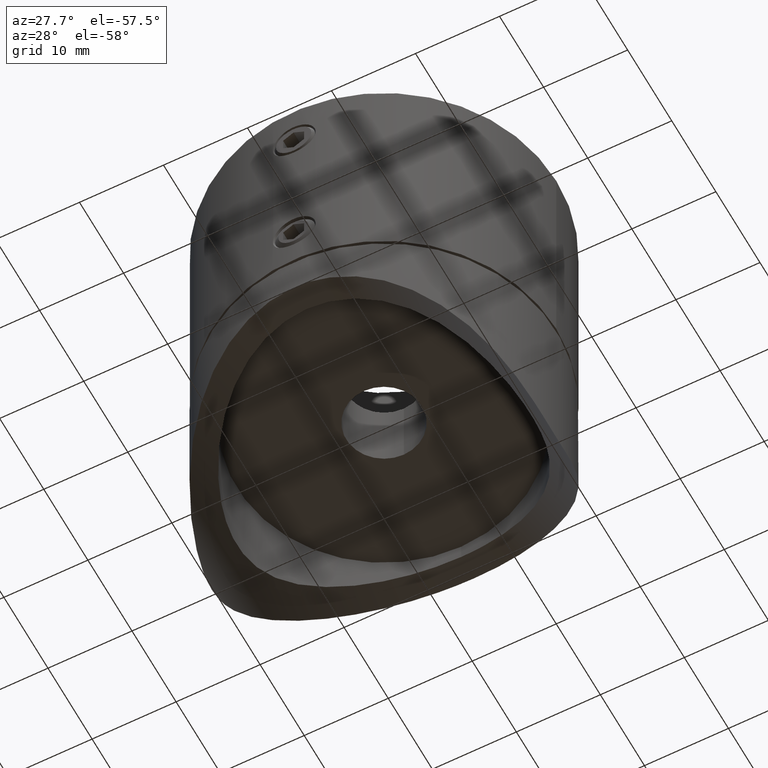
[diagram: clean part render]
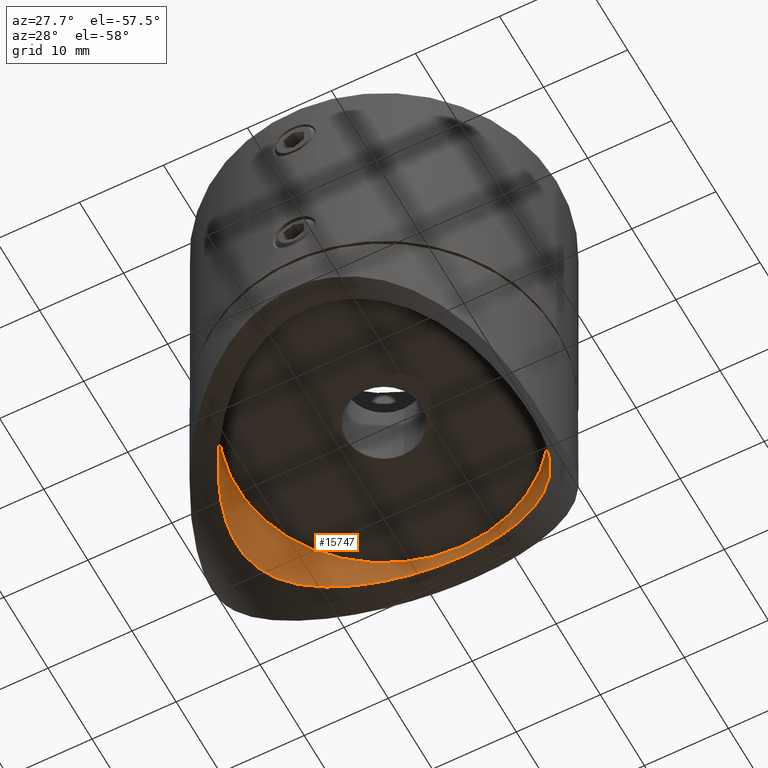
[diagram: same view with one face highlighted and labeled with its STEP entity id]
A machine part, auxiliary view. The second image highlights one B-rep face of the part: STEP entity #15747.
In plain terms, the highlighted cylindrical surface (bore or boss wall) has radius 17.5 mm, axis along (0, 0, -1).
Its self-contained STEP definition (entity closure, byte-faithful):
#34 = CARTESIAN_POINT ( 'NONE',  ( -17.24386337891472465, 3.040406141282110397, -8.865839844872155595 ) ) ;
#88 = CARTESIAN_POINT ( 'NONE',  ( -9.083739000497836003, -14.96880593915698832, -2.036885764455773185 ) ) ;
#161 = DIRECTION ( 'NONE',  ( -0.000000000000000000, 1.156482317317871478E-16, -1.000000000000000000 ) ) ;
#295 = CARTESIAN_POINT ( 'NONE',  ( 7.497553294319823536, -15.82324873608317439, -1.362004697499437977 ) ) ;
#352 = CARTESIAN_POINT ( 'NONE',  ( 13.21346104451343173, -11.48681872448379337, -4.615597683663826167 ) ) ;
#403 = CARTESIAN_POINT ( 'NONE',  ( 17.01303445160383987, 4.141714093986752943, -8.549379967654234136 ) ) ;
#876 = CARTESIAN_POINT ( 'NONE',  ( -5.067655612918739116, 16.75283616284645305, -0.6125111074320683802 ) ) ;
#998 = CARTESIAN_POINT ( 'NONE',  ( -3.906236867193531026, 17.06110921966444849, -0.3608496445155510712 ) ) ;
#1055 = CARTESIAN_POINT ( 'NONE',  ( -8.043638371016083255, 15.55236825713667059, -1.577650751387617012 ) ) ;
#1178 = CARTESIAN_POINT ( 'NONE',  ( -14.23847569933384527, 10.18855310605379927, -5.487715213909245549 ) ) ;
#1235 = CARTESIAN_POINT ( 'NONE',  ( -16.30806594274449850, 6.372029755616434699, -7.650148169647616569 ) ) ;
#1338 = CARTESIAN_POINT ( 'NONE',  ( -13.91609126854267053, 10.62481324897706259, -5.200591525558388994 ) ) ;
#1403 = CARTESIAN_POINT ( 'NONE',  ( -17.33827104258254082, 2.451050158928962386, -9.000120589566094509 ) ) ;
#1452 = CARTESIAN_POINT ( 'NONE',  ( 14.22241351837834777, -10.21106302151933676, -5.473122119973910849 ) ) ;
#1626 = CARTESIAN_POINT ( 'NONE',  ( 11.71504083009419261, -13.04522999051553001, -3.505981036777544801 ) ) ;
#2447 = CARTESIAN_POINT ( 'NONE',  ( -7.568379588315958806, -15.78940386503816029, -1.388997083494236451 ) ) ;
#2498 = CARTESIAN_POINT ( 'NONE',  ( -17.46699287505471787, 1.235900291459521405, -9.185140022539869165 ) ) ;
#2550 = CARTESIAN_POINT ( 'NONE',  ( -15.65583057623333119, 7.897346450912092308, -6.889829957757155121 ) ) ;
#2602 = CARTESIAN_POINT ( 'NONE',  ( -12.87097464404788560, 11.86932399460175169, -4.347759016917471797 ) ) ;
#2658 = CARTESIAN_POINT ( 'NONE',  ( 0.000000000000000000, 0.000000000000000000, 0.000000000000000000 ) ) ;
#2914 = CARTESIAN_POINT ( 'NONE',  ( -1.277528164808326538, -17.49584459206828413, -0.003430165658339822971 ) ) ;
#2942 = CYLINDRICAL_SURFACE ( 'NONE', #7521, 17.50000000000000000 ) ;
#3077 = CARTESIAN_POINT ( 'NONE',  ( 17.37796659204369121, 2.085241071745541852, -9.057133369806717127 ) ) ;
#3129 = CARTESIAN_POINT ( 'NONE',  ( 17.33462974748771401, -2.475738546407064700, -8.994938054514005188 ) ) ;
#3187 = CARTESIAN_POINT ( 'NONE',  ( 16.49501262945719660, -5.872939585915643690, -7.879567121977553157 ) ) ;
#3337 = FACE_OUTER_BOUND ( 'NONE', #13992, .T. ) ;
#3403 = CARTESIAN_POINT ( 'NONE',  ( 8.086705730690027849, 15.52996890337844427, -1.595404497979376224 ) ) ;
#3407 = ORIENTED_EDGE ( 'NONE', *, *, #15034, .F. ) ;
#3587 = CARTESIAN_POINT ( 'NONE',  ( -9.524517569277668017, 14.69170826759712156, -2.252846591963477696 ) ) ;
#3700 = CARTESIAN_POINT ( 'NONE',  ( -6.507517457610140887, -16.25539481356940286, -1.015639155783585768 ) ) ;
#3813 = CARTESIAN_POINT ( 'NONE',  ( -16.52182079844146756, -5.797052159638316660, -7.912908347491365291 ) ) ;
#3921 = CARTESIAN_POINT ( 'NONE',  ( -17.50067843918114363, -0.5873231742949008849, -9.234789777794508936 ) ) ;
#4142 = CARTESIAN_POINT ( 'NONE',  ( -4.252397677670929355, -16.97813969774495391, -0.4287410033487076277 ) ) ;
#4245 = CARTESIAN_POINT ( 'NONE',  ( 16.84316366280751254, -4.783795444377584083, -8.322608512135147407 ) ) ;
#4359 = CARTESIAN_POINT ( 'NONE',  ( 15.15509232401279860, 8.816608068498799966, -6.352814690414372301 ) ) ;
#4418 = CARTESIAN_POINT ( 'NONE',  ( 17.47068367874127759, 1.180264632735980923, -9.190547752342899557 ) ) ;
#4729 = CARTESIAN_POINT ( 'NONE',  ( -4.198211667982922890, 16.99162043731080018, -0.4177193951831520979 ) ) ;
#5069 = CARTESIAN_POINT ( 'NONE',  ( -17.46985179758621598, -1.193845812649097837, -9.189324701120186845 ) ) ;
#5117 = CARTESIAN_POINT ( 'NONE',  ( -16.32442710002123931, -6.330230443123496364, -7.669859431588230692 ) ) ;
#5136 = VERTEX_POINT ( 'NONE', #9335 ) ;
#5227 = CARTESIAN_POINT ( 'NONE',  ( -13.94038394261453639, -10.59293742111977643, -5.221764300403955339 ) ) ;
#5286 = CARTESIAN_POINT ( 'NONE',  ( 0.2465697910313439101, -17.50091767167528189, 0.0007575105885289126458 ) ) ;
#5508 = CARTESIAN_POINT ( 'NONE',  ( 9.010682868421870495, -15.01277645573478203, -2.002495604114043815 ) ) ;
#5541 = EDGE_CURVE ( 'NONE', #8162, #8162, #9707, .T. ) ;
#5618 = CARTESIAN_POINT ( 'NONE',  ( 16.52469693459130085, 5.788760017350249143, -7.916501575781205169 ) ) ;
#5669 = CARTESIAN_POINT ( 'NONE',  ( 14.25871095076460016, 10.16016792766058963, -5.506112789873336411 ) ) ;
#5834 = CARTESIAN_POINT ( 'NONE',  ( 3.058516256898806240, 17.24129890699676793, -0.2131673490597825460 ) ) ;
#5948 = CARTESIAN_POINT ( 'NONE',  ( 2.450482594706057338, 17.33840392213179626, -0.1332271744567321836 ) ) ;
#6237 = CARTESIAN_POINT ( 'NONE',  ( -6.466438711126498262, 16.27179417740867606, -1.002424180671938503 ) ) ;
#6401 = CARTESIAN_POINT ( 'NONE',  ( -13.25709795518398515, -11.43651964025425904, -4.650447911015619162 ) ) ;
#6408 = DIRECTION ( 'NONE',  ( -0.000000000000000000, 1.156482317317871478E-16, -1.000000000000000000 ) ) ;
#6456 = CARTESIAN_POINT ( 'NONE',  ( -16.50506731380759717, 5.844912491493738926, -7.892026179087148208 ) ) ;
#6506 = CARTESIAN_POINT ( 'NONE',  ( -17.19095212691278007, -3.287435342662163418, -8.793489093231034559 ) ) ;
#6563 = CARTESIAN_POINT ( 'NONE',  ( -3.957094607793416596, -17.04942438003020300, -0.3704163064312105402 ) ) ;
#6720 = CARTESIAN_POINT ( 'NONE',  ( 5.875721920608387272, -16.49492799653786079, -0.8220339605937884153 ) ) ;
#6779 = CARTESIAN_POINT ( 'NONE',  ( 9.494865487268153714, -14.71098971236246200, -2.237894517711387365 ) ) ;
#6940 = CARTESIAN_POINT ( 'NONE',  ( 11.75184374789024666, 13.01284439820549999, -3.530066077978521122 ) ) ;
#7004 = CARTESIAN_POINT ( 'NONE',  ( 12.89562394974593573, 11.84273493110535291, -4.366521986897741847 ) ) ;
#7119 = CARTESIAN_POINT ( 'NONE',  ( 7.564560770108174736, 15.79141555487498572, -1.387400769369391940 ) ) ;
#7378 = CARTESIAN_POINT ( 'NONE',  ( -4.778612427083569258, 16.83760700237858998, -0.5434506362205558938 ) ) ;
#7521 = AXIS2_PLACEMENT_3D ( 'NONE', #2658, #6408, #8970 ) ;
#7722 = CARTESIAN_POINT ( 'NONE',  ( -11.76022229711522016, -13.00464765559365254, -3.535992552796882737 ) ) ;
#7729 = CARTESIAN_POINT ( 'NONE',  ( -1.192622389734054877E-15, 17.50000000000000000, -5.897859040141040032E-18 ) ) ;
#7826 = CARTESIAN_POINT ( 'NONE',  ( -9.562018155268978248, -14.66722832022718848, -2.271821499043444881 ) ) ;
#7880 = CARTESIAN_POINT ( 'NONE',  ( 13.89762547964845396, -10.64887614781257774, -5.184571220463790375 ) ) ;
#8046 = CARTESIAN_POINT ( 'NONE',  ( 6.430025487511463744, -16.28629111231520454, -0.9907413482544245031 ) ) ;
#8099 = CARTESIAN_POINT ( 'NONE',  ( 4.158952617992463630, -17.00922726916944328, -0.4033924051184962778 ) ) ;
#8151 = CARTESIAN_POINT ( 'NONE',  ( 17.19306620750767678, 3.276470449463080303, -8.796417594185959032 ) ) ;
#8162 = VERTEX_POINT ( 'NONE', #9130 ) ;
#8208 = CARTESIAN_POINT ( 'NONE',  ( 15.67295982877751470, 7.865093308166934527, -6.908389598791436548 ) ) ;
#8264 = CARTESIAN_POINT ( 'NONE',  ( 16.86658117550648939, 4.700403255957337656, -8.353390384371264688 ) ) ;
#8313 = CARTESIAN_POINT ( 'NONE',  ( 17.23968166261209944, -3.064352586436271064, -8.859963496478812317 ) ) ;
#8431 = CARTESIAN_POINT ( 'NONE',  ( 9.554674410092220072, 14.67194539536051678, -2.268156560611843009 ) ) ;
#8863 = EDGE_LOOP ( 'NONE', ( #3407 ) ) ;
#8914 = CARTESIAN_POINT ( 'NONE',  ( -10.90237164851524376, 13.73459862639943196, -2.988395973494066382 ) ) ;
#8964 = CARTESIAN_POINT ( 'NONE',  ( -17.24420342911597004, -2.996178694034924650, -8.867773003833441692 ) ) ;
#8970 = DIRECTION ( 'NONE',  ( 0.000000000000000000, 1.000000000000000000, 1.156482317317871725E-16 ) ) ;
#9005 = CIRCLE ( 'NONE', #11846, 17.50000000000000000 ) ;
#9074 = CARTESIAN_POINT ( 'NONE',  ( -13.23132877130680818, 11.46630680365898947, -4.629827801980091806 ) ) ;
#9099 = CARTESIAN_POINT ( 'NONE',  ( 0.000000000000000000, -2.312964634635740492E-16, 1.999999999999997780 ) ) ;
#9126 = CARTESIAN_POINT ( 'NONE',  ( -8.083332585414096272, -15.53187689195640964, -1.593904117666210762 ) ) ;
#9130 = CARTESIAN_POINT ( 'NONE',  ( 0.000000000000000000, 17.50000000000000000, 0.000000000000000000 ) ) ;
#9176 = CARTESIAN_POINT ( 'NONE',  ( -4.832199470873418612, -16.82230548643362411, -0.5559225299671228804 ) ) ;
#9332 = CARTESIAN_POINT ( 'NONE',  ( 10.88102491510843883, -13.75194722761068178, -2.975320124407874633 ) ) ;
#9335 = CARTESIAN_POINT ( 'NONE',  ( 0.000000000000000000, 17.50000000000000000, 2.000000000000000000 ) ) ;
#9707 = B_SPLINE_CURVE_WITH_KNOTS ( 'NONE', 3,
 ( #7729, #15502, #11154, #998, #4729, #7378, #876, #12530, #6237, #13870, #1055, #10037, #3587, #8914, #15373, #2602, #9074, #1338, #1178, #10354, #2550, #1235, #6456, #10190, #15483, #34, #1403, #2498, #12765, #3921, #5069, #11502, #14090, #8964, #6506, #11556, #11609, #3813, #5117, #11666, #12972, #14150, #5227, #6401, #15433, #7722, #15536, #7826, #88, #9126, #2447, #3700, #13031, #13087, #9176, #4142, #6563, #11891, #2914, #5286, #11722, #15700, #14306, #11780, #13187, #8099, #14455, #6720, #8046, #295, #15589, #5508, #6779, #9332, #1626, #10632, #352, #7880, #1452, #10463, #15639, #11994, #3187, #4245, #16087, #8313, #3129, #13406, #14784, #10795, #13520, #13291, #4418, #3077, #14559, #15862, #8151, #403, #8264, #5618, #13465, #8208, #4359, #5669, #14731, #14672, #7004, #6940, #15010, #8431, #11190, #3403, #7119, #13681, #11137, #5834, #5948, #16369, #16144, #11027 ),
 .UNSPECIFIED., .T., .F.,
 ( 4, 2, 2, 2, 2, 2, 2, 2, 2, 2, 2, 2, 2, 2, 2, 2, 2, 2, 2, 2, 2, 2, 2, 2, 2, 2, 2, 2, 2, 2, 2, 2, 2, 2, 2, 2, 2, 2, 2, 2, 2, 2, 2, 2, 2, 2, 2, 2, 2, 2, 2, 2, 2, 2, 2, 2, 2, 2, 2, 4 ),
 ( 0.000000000000000000, 0.003641065193839746524, 0.004551331492299683264, 0.005461597790759619570, 0.007282130387679493048, 0.009102662984599369997, 0.01092319558151924434, 0.01456426077535900171, 0.01638479337227887606, 0.01820532596919875734, 0.02184639116303851644, 0.02366692375995839426, 0.02548745635687826860, 0.02730798895379814642, 0.02912852155071801730, 0.03094905414763789164, 0.03185932044609782882, 0.03276958674455775905, 0.03459011934147763340, 0.03641065193839751468, 0.04005171713223726337, 0.04187224972915714466, 0.04369278232607701901, 0.04733384751991678158, 0.04915438011683666286, 0.05097491271375653721, 0.05279544531067642543, 0.05370571160913636954, 0.05461597790759631366, 0.05825704310143608317, 0.05916730939989602728, 0.06007757569835595751, 0.06189810829527584574, 0.06371864089219572702, 0.06553917348911561525, 0.06735970608603550347, 0.06918023868295539169, 0.07282130387679516814, 0.07464183647371504249, 0.07646236907063493071, 0.08010343426447470716, 0.08192396686139458151, 0.08374449945831448361, 0.08556503205523435795, 0.08647529835369430207, 0.08738556465215423230, 0.08920609724907412053, 0.09011636354753406464, 0.09102662984599399487, 0.09284716244291389697, 0.09466769503983377132, 0.09830876023367354777, 0.1001292928305934360, 0.1019498254275133103, 0.1055908906213530868, 0.1074114232182729750, 0.1092319558151928632, 0.1128730210090326397, 0.1146935536059525418, 0.1165140862028724300 ),
 .UNSPECIFIED. ) ;
#9796 = FACE_OUTER_BOUND ( 'NONE', #8863, .T. ) ;
#10037 = CARTESIAN_POINT ( 'NONE',  ( -9.040706643407375509, 14.99472907514917885, -2.016613133597837226 ) ) ;
#10190 = CARTESIAN_POINT ( 'NONE',  ( -16.85297101848544443, 4.749485963410105427, -8.335444737515723901 ) ) ;
#10354 = CARTESIAN_POINT ( 'NONE',  ( -15.13894127354767249, 8.844528006494737582, -6.336191912062649756 ) ) ;
#10463 = CARTESIAN_POINT ( 'NONE',  ( 15.12803009328502313, -8.863640491661691101, -6.324864973362999798 ) ) ;
#10600 = DIRECTION ( 'NONE',  ( 0.000000000000000000, 1.000000000000000000, 1.239088197126290817E-16 ) ) ;
#10632 = CARTESIAN_POINT ( 'NONE',  ( 12.85313066262624737, -11.88863255208570635, -4.334142347634096559 ) ) ;
#10795 = CARTESIAN_POINT ( 'NONE',  ( 17.49067967013614577, -0.6486536308099889458, -9.220141692321247362 ) ) ;
#11027 = CARTESIAN_POINT ( 'NONE',  ( -1.192622389734054877E-15, 17.50000000000000000, -5.897859040141040032E-18 ) ) ;
#11137 = CARTESIAN_POINT ( 'NONE',  ( 4.835722789783265085, 16.86218917806517581, -0.5238676065974767759 ) ) ;
#11154 = CARTESIAN_POINT ( 'NONE',  ( -2.437449593343936183, 17.37098119758821113, -0.1068536368407234372 ) ) ;
#11190 = CARTESIAN_POINT ( 'NONE',  ( 9.079925644482283786, 14.97096169273535082, -2.035190461074360968 ) ) ;
#11502 = CARTESIAN_POINT ( 'NONE',  ( -17.37589340789023851, -2.102635415648134831, -9.054163716778358406 ) ) ;
#11556 = CARTESIAN_POINT ( 'NONE',  ( -17.01117711243454167, -4.148989985207032660, -8.546887936648936090 ) ) ;
#11609 = CARTESIAN_POINT ( 'NONE',  ( -16.86473363122540192, -4.707136686478857968, -8.350948415319031426 ) ) ;
#11666 = CARTESIAN_POINT ( 'NONE',  ( -15.67274051615545005, -7.864486959813742573, -6.908334579454411539 ) ) ;
#11722 = CARTESIAN_POINT ( 'NONE',  ( 0.5525521460404745344, -17.49397815044266125, -0.004972312385630514066 ) ) ;
#11780 = CARTESIAN_POINT ( 'NONE',  ( 2.385604629994775738, -17.34738656227536779, -0.1258313267730850615 ) ) ;
#11846 = AXIS2_PLACEMENT_3D ( 'NONE', #9099, #161, #10600 ) ;
#11891 = CARTESIAN_POINT ( 'NONE',  ( -2.478365965337755661, -17.36580585369389595, -0.1111362216811201120 ) ) ;
#11994 = CARTESIAN_POINT ( 'NONE',  ( 16.29850297859011121, -6.396310954883131394, -7.638650734676912357 ) ) ;
#12530 = CARTESIAN_POINT ( 'NONE',  ( -5.918110729776234535, 16.47970197034513973, -0.8343599501236792504 ) ) ;
#12765 = CARTESIAN_POINT ( 'NONE',  ( -17.49929898055125221, 0.6270801639039433883, -9.232772389460096818 ) ) ;
#12972 = CARTESIAN_POINT ( 'NONE',  ( -15.15669477287706890, -8.813930905346280653, -6.354429424892796163 ) ) ;
#13031 = CARTESIAN_POINT ( 'NONE',  ( -5.961617189304858400, -16.46386812919210030, -0.8471719520393391489 ) ) ;
#13087 = CARTESIAN_POINT ( 'NONE',  ( -5.117694531151093962, -16.73758229278162091, -0.6249222370547646843 ) ) ;
#13187 = CARTESIAN_POINT ( 'NONE',  ( 2.983061729832287234, -17.25433400305481868, -0.2024497369288483506 ) ) ;
#13291 = CARTESIAN_POINT ( 'NONE',  ( 17.50125685938019870, 0.5734165011058272032, -9.235635678553059336 ) ) ;
#13406 = CARTESIAN_POINT ( 'NONE',  ( 17.43205853877173439, -1.570191886043998508, -9.134902963724478298 ) ) ;
#13465 = CARTESIAN_POINT ( 'NONE',  ( 16.32835458828825992, 6.320417476265907553, -7.674550438054654755 ) ) ;
#13520 = CARTESIAN_POINT ( 'NONE',  ( 17.49931240907351793, -0.3424394035174895268, -9.232792032883180511 ) ) ;
#13681 = CARTESIAN_POINT ( 'NONE',  ( 5.959344568629608041, 16.49550701851789114, -0.8232268505211671750 ) ) ;
#13870 = CARTESIAN_POINT ( 'NONE',  ( -7.529209296368422066, 15.80813470110201102, -1.374059771255732310 ) ) ;
#13992 = EDGE_LOOP ( 'NONE', ( #16449 ) ) ;
#14090 = CARTESIAN_POINT ( 'NONE',  ( -17.33660141572964264, -2.404556096963612610, -8.998007296271838484 ) ) ;
#14150 = CARTESIAN_POINT ( 'NONE',  ( -14.25997313160910096, -10.15841325682220564, -5.507254643611635636 ) ) ;
#14306 = CARTESIAN_POINT ( 'NONE',  ( 1.474325271058967601, -17.44045863769164484, -0.04913030925951000771 ) ) ;
#14455 = CARTESIAN_POINT ( 'NONE',  ( 4.737382691173066540, -16.85716354956136698, -0.5277283969834446475 ) ) ;
#14559 = CARTESIAN_POINT ( 'NONE',  ( 17.33903062756211000, 2.387265017376360987, -9.001458229349255546 ) ) ;
#14672 = CARTESIAN_POINT ( 'NONE',  ( 13.25914337846816338, 11.43404911785446210, -4.652133195144248390 ) ) ;
#14731 = CARTESIAN_POINT ( 'NONE',  ( 13.93974388148504673, 10.59367277571309174, -5.221254134300045813 ) ) ;
#14784 = CARTESIAN_POINT ( 'NONE',  ( 17.45707726353512967, -1.262964873241566588, -9.171228915207562338 ) ) ;
#15010 = CARTESIAN_POINT ( 'NONE',  ( 10.91988103551904210, 13.71996126960128848, -2.999390269674654164 ) ) ;
#15034 = EDGE_CURVE ( 'NONE', #5136, #5136, #9005, .T. ) ;
#15373 = CARTESIAN_POINT ( 'NONE',  ( -11.73404490107614073, 13.02818298020634025, -3.518590327183507060 ) ) ;
#15433 = CARTESIAN_POINT ( 'NONE',  ( -12.89587873390181727, -11.84228584190673494, -4.366809316900075011 ) ) ;
#15483 = CARTESIAN_POINT ( 'NONE',  ( -17.00123320347161737, 4.189625674901805930, -8.533492962770131030 ) ) ;
#15502 = CARTESIAN_POINT ( 'NONE',  ( -1.234182084564685367, 17.49999999999999645, -4.818676322157729829E-17 ) ) ;
#15536 = CARTESIAN_POINT ( 'NONE',  ( -10.93106367348886465, -13.71134414138905377, -3.005924666826237601 ) ) ;
#15589 = CARTESIAN_POINT ( 'NONE',  ( 8.013145880489803474, -15.56808773623547104, -1.565182102109495599 ) ) ;
#15639 = CARTESIAN_POINT ( 'NONE',  ( 15.64604808573270134, -7.916258712145267218, -6.879149736984897068 ) ) ;
#15700 = CARTESIAN_POINT ( 'NONE',  ( 1.166904230604099091, -17.46376018842612865, -0.02990677702547496486 ) ) ;
#15747 = ADVANCED_FACE ( 'NONE', ( #3337, #9796 ), #2942, .F. ) ;
#15862 = CARTESIAN_POINT ( 'NONE',  ( 17.24644143992893319, 2.983500465196553986, -8.870901813475970954 ) ) ;
#16087 = CARTESIAN_POINT ( 'NONE',  ( 16.99464272886486071, -4.216515044493880815, -8.524620587348088918 ) ) ;
#16144 = CARTESIAN_POINT ( 'NONE',  ( 0.6170910422823496777, 17.50000000000000000, 1.524659305057739070E-17 ) ) ;
#16369 = CARTESIAN_POINT ( 'NONE',  ( 1.232349236521705249, 17.46729603783015605, -0.02701963375845421733 ) ) ;
#16449 = ORIENTED_EDGE ( 'NONE', *, *, #5541, .F. ) ;